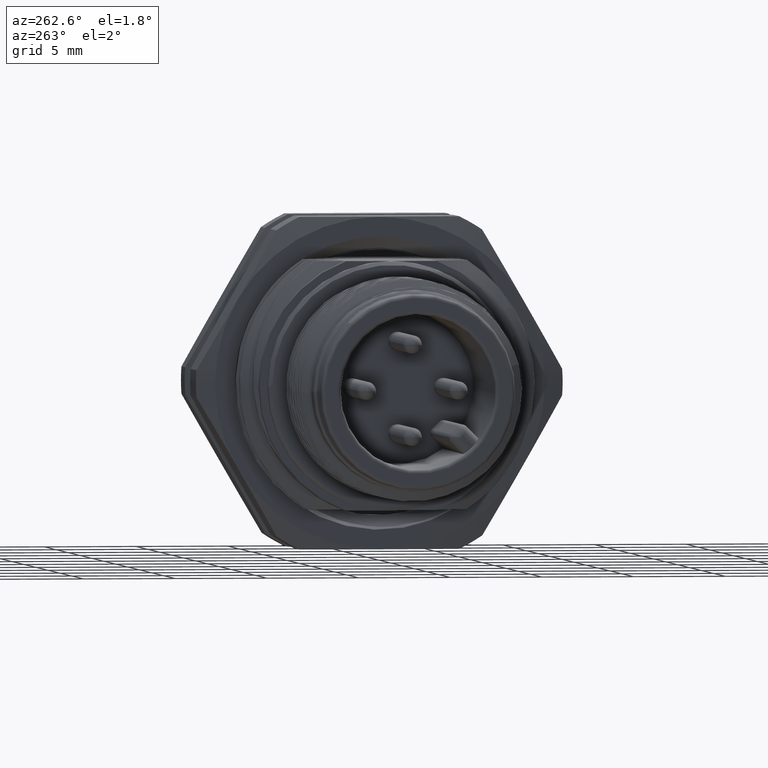
[diagram: clean part render]
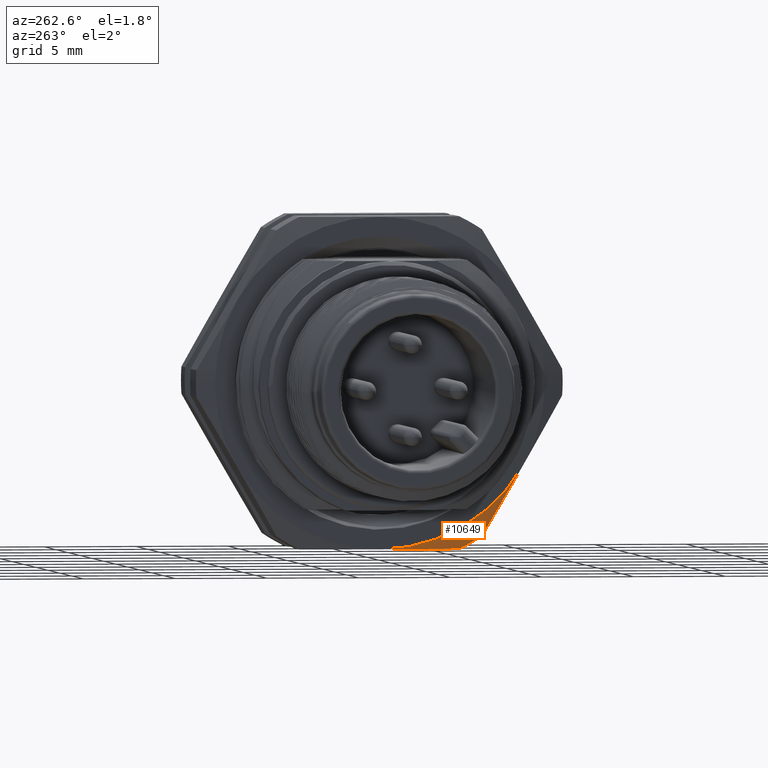
[diagram: same view with one face highlighted and labeled with its STEP entity id]
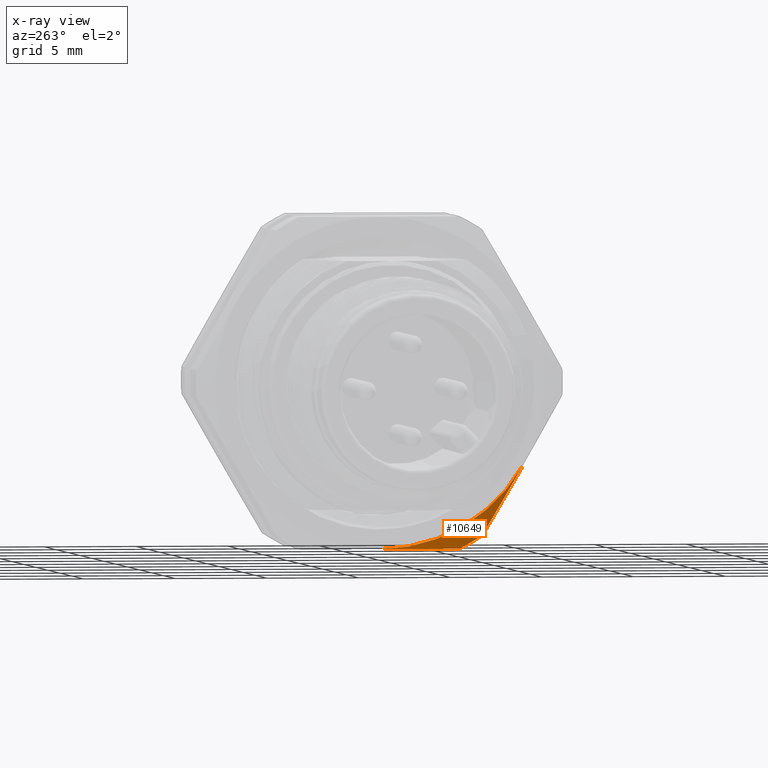
[diagram: x-ray of the same camera — body ghosted, the highlighted face saturated]
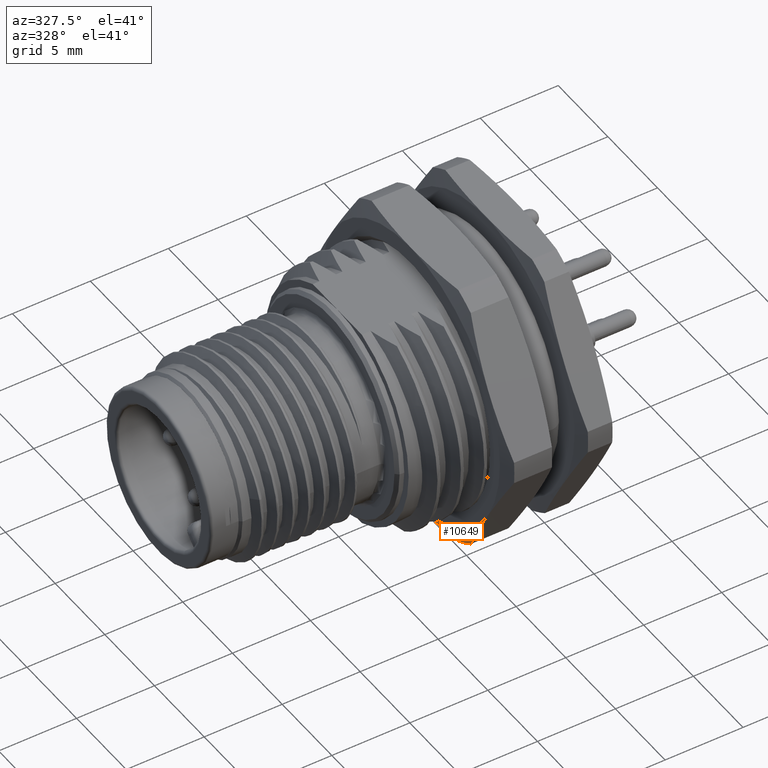
[diagram: same view with one face highlighted and labeled with its STEP entity id]
A machine part, auxiliary view. The second image highlights one B-rep face of the part: STEP entity #10649.
The next image is the same camera in x-ray: the body ghosted, the highlighted face saturated — about 0% of this face is hidden behind the body in this view.
A second angle (auxiliary view) of the same face is appended — the face is thin or edge-on in the first view.
In plain terms, the highlighted conical surface has half-angle 73.971 deg.
Its self-contained STEP definition (entity closure, byte-faithful):
#1453=CARTESIAN_POINT('',(1.46E1,0.E0,0.E0));
#1454=DIRECTION('',(1.E0,0.E0,0.E0));
#1455=DIRECTION('',(0.E0,-8.662409854032E-1,-4.996264156425E-1));
#1456=AXIS2_PLACEMENT_3D('',#1453,#1454,#1455);
#1504=CARTESIAN_POINT('',(1.46E1,-7.796168868643E0,-4.496637740763E0));
#1708=CARTESIAN_POINT('',(1.488729340512E1,0.E0,0.E0));
#1709=DIRECTION('',(1.E0,0.E0,0.E0));
#1710=DIRECTION('',(0.E0,-5.618347814141E-1,-8.272494656350E-1));
#1711=AXIS2_PLACEMENT_3D('',#1708,#1709,#1710);
#1713=CARTESIAN_POINT('',(1.488729340512E1,-4.362780458149E0,
-8.998119063115E0));
#1714=CARTESIAN_POINT('',(1.484089993759E1,-3.992309357144E0,
-8.998278856375E0));
#1715=CARTESIAN_POINT('',(1.475841359327E1,-3.256102714497E0,
-8.998596400331E0));
#1716=CARTESIAN_POINT('',(1.466878548765E1,-2.180062525620E0,
-8.999060522821E0));
#1717=CARTESIAN_POINT('',(1.461250980872E1,-1.088991576543E0,
-8.999531128443E0));
#1718=CARTESIAN_POINT('',(1.459999999999E1,-3.656887669495E-1,
-8.999843106665E0));
#1719=CARTESIAN_POINT('',(1.46E1,-3.881919240328E-3,-8.999999162820E0));
#1721=CARTESIAN_POINT('',(1.46E1,-7.796168868643E0,-4.496637740763E0));
#1722=CARTESIAN_POINT('',(1.460000000001E1,-7.615394395526E0,
-4.810060435925E0));
#1723=CARTESIAN_POINT('',(1.461251000776E1,-7.254005626593E0,
-5.436628114459E0));
#1724=CARTESIAN_POINT('',(1.466879185786E1,-6.708846236988E0,
-6.381813141065E0));
#1725=CARTESIAN_POINT('',(1.475841300792E1,-6.171280574243E0,
-7.313832335692E0));
#1726=CARTESIAN_POINT('',(1.484089904267E1,-5.803448550083E0,
-7.951571184495E0));
#1727=CARTESIAN_POINT('',(1.488729340512E1,-5.618347814141E0,
-8.272494656350E0));
#9120=VERTEX_POINT('',#1504);
#9121=CARTESIAN_POINT('',(1.488729340512E1,-5.618347814141E0,
-8.272494656350E0));
#9122=CARTESIAN_POINT('',(1.488729340512E1,-4.362780458149E0,
-8.998119063115E0));
#9123=VERTEX_POINT('',#9121);
#9124=VERTEX_POINT('',#9122);
#9125=VERTEX_POINT('',#1719);
#10638=CARTESIAN_POINT('',(1.474364670256E1,0.E0,0.E0));
#10639=DIRECTION('',(1.E0,0.E0,0.E0));
#10640=DIRECTION('',(0.E0,-9.999999069796E-1,4.313244527675E-4));
#10641=AXIS2_PLACEMENT_3D('',#10638,#10639,#10640);
#10642=CONICAL_SURFACE('',#10641,9.5E0,7.397099060237E1);
#10643=ORIENTED_EDGE('',*,*,#10602,.T.);
#10644=ORIENTED_EDGE('',*,*,#10589,.T.);
#10645=ORIENTED_EDGE('',*,*,#10301,.F.);
#10646=ORIENTED_EDGE('',*,*,#10632,.T.);
#10647=EDGE_LOOP('',(#10643,#10644,#10645,#10646));
#10648=FACE_OUTER_BOUND('',#10647,.F.);
#10649=ADVANCED_FACE('',(#10648),#10642,.T.);
#1457=CIRCLE('',#1456,8.999999999999E0);
#1712=CIRCLE('',#1711,1.E1);
#1720=B_SPLINE_CURVE_WITH_KNOTS('',3,(#1713,#1714,#1715,#1716,#1717,#1718,
#1719),.UNSPECIFIED.,.F.,.F.,(4,1,1,1,4),(0.E0,2.5E-1,5.E-1,7.5E-1,1.E0),
.UNSPECIFIED.);
#1728=B_SPLINE_CURVE_WITH_KNOTS('',3,(#1721,#1722,#1723,#1724,#1725,#1726,
#1727),.UNSPECIFIED.,.F.,.F.,(4,1,1,1,4),(0.E0,2.5E-1,5.E-1,7.5E-1,1.E0),
.UNSPECIFIED.);
#10301=EDGE_CURVE('',#9120,#9125,#1457,.T.);
#10589=EDGE_CURVE('',#9124,#9125,#1720,.T.);
#10602=EDGE_CURVE('',#9123,#9124,#1712,.T.);
#10632=EDGE_CURVE('',#9120,#9123,#1728,.T.);